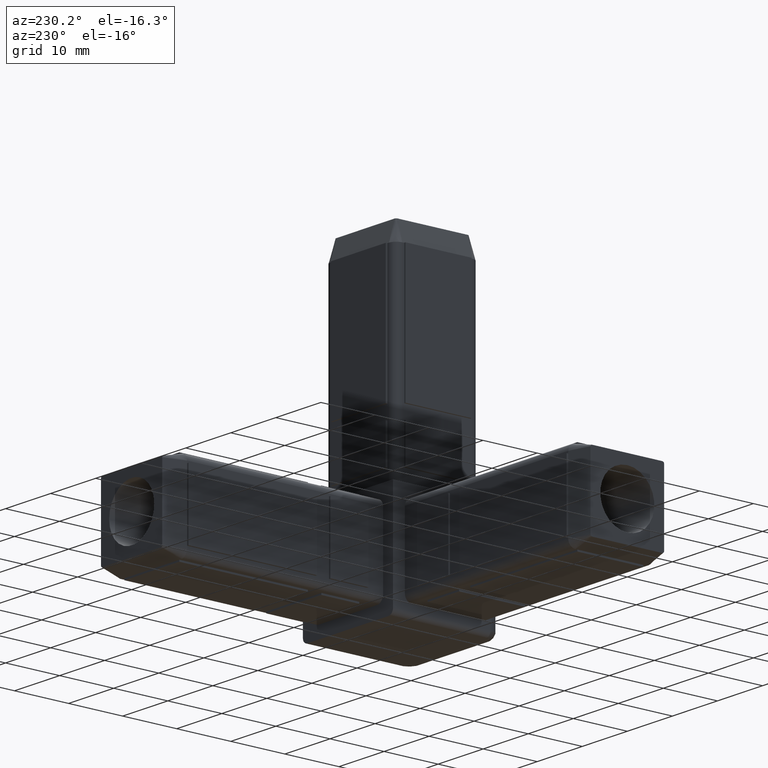
[diagram: clean part render]
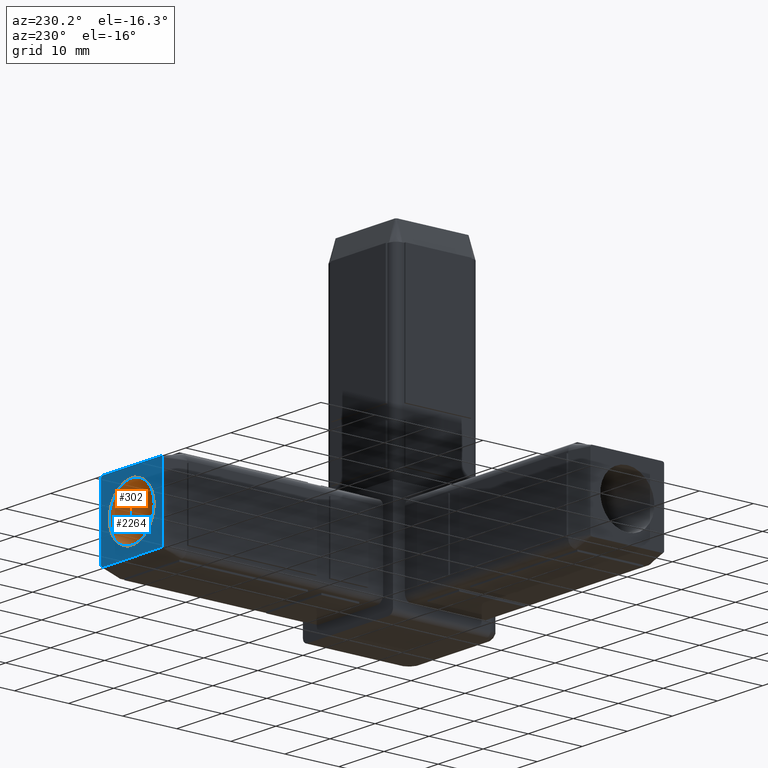
[diagram: same view with the hole feature highlighted: cylindrical wall and planar end face, labeled with their STEP entity ids]
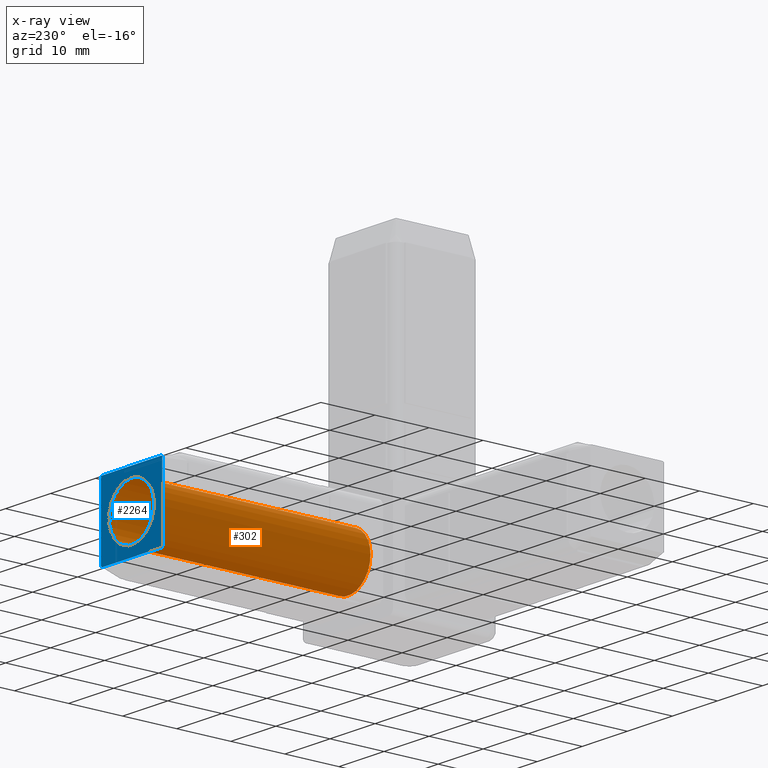
[diagram: x-ray of the same camera — body ghosted, the hole faces saturated]
A machine part, auxiliary view. The highlighted faces form one hole feature of diameter 10 mm: the cylindrical wall (entity #302, orange) and its adjacent planar end face (entity #2264, blue) — they share a circular edge in the B-rep.
The next image is the same camera in x-ray (body ghosted, the hole faces saturated) — the bore reads through the body.
Wall:
#252=CARTESIAN_POINT('',(10.0,40.000002152544255,4.618528E-014));
#253=DIRECTION('',(0.0,1.0,0.0));
#254=DIRECTION('',(-1.0,0.0,0.0));
#255=AXIS2_PLACEMENT_3D('',#252,#253,#254);
#256=CYLINDRICAL_SURFACE('',#255,5.0);
#257=CARTESIAN_POINT('',(15.0,-0.000017854767464,4.618528E-014));
#258=VERTEX_POINT('',#257);
#259=CARTESIAN_POINT('',(5.0,-0.000017854767464,4.618528E-014));
#260=VERTEX_POINT('',#259);
#261=CARTESIAN_POINT('',(10.0,-0.000017854767464,4.618528E-014));
#262=DIRECTION('',(0.0,1.0,0.0));
#263=DIRECTION('',(-1.0,0.0,0.0));
#264=AXIS2_PLACEMENT_3D('',#261,#262,#263);
#265=CIRCLE('',#264,5.0);
#266=EDGE_CURVE('',#258,#260,#265,.T.);
#267=ORIENTED_EDGE('',*,*,#266,.F.);
#268=CARTESIAN_POINT('',(10.0,-0.000017854767464,4.618528E-014));
#269=DIRECTION('',(0.0,1.0,0.0));
#270=DIRECTION('',(-1.0,0.0,0.0));
#271=AXIS2_PLACEMENT_3D('',#268,#269,#270);
#272=CIRCLE('',#271,5.0);
#273=EDGE_CURVE('',#260,#258,#272,.T.);
#274=ORIENTED_EDGE('',*,*,#273,.F.);
#275=CARTESIAN_POINT('',(5.0,40.000002152544255,4.618528E-014));
#276=VERTEX_POINT('',#275);
#277=CARTESIAN_POINT('',(5.0,40.000002152544255,4.618528E-014));
#278=DIRECTION('',(0.0,-1.0,0.0));
#279=VECTOR('',#278,40.000020007311718);
#280=LINE('',#277,#279);
#281=EDGE_CURVE('',#276,#260,#280,.T.);
#282=ORIENTED_EDGE('',*,*,#281,.F.);
#283=CARTESIAN_POINT('',(15.0,40.000002152544255,4.618528E-014));
#284=VERTEX_POINT('',#283);
#285=CARTESIAN_POINT('',(10.0,40.000002152544255,4.618528E-014));
#286=DIRECTION('',(0.0,1.0,0.0));
#287=DIRECTION('',(-1.0,0.0,0.0));
#288=AXIS2_PLACEMENT_3D('',#285,#286,#287);
#289=CIRCLE('',#288,5.0);
#290=EDGE_CURVE('',#276,#284,#289,.T.);
#291=ORIENTED_EDGE('',*,*,#290,.T.);
#292=CARTESIAN_POINT('',(10.0,40.000002152544255,4.618528E-014));
#293=DIRECTION('',(0.0,1.0,0.0));
#294=DIRECTION('',(-1.0,0.0,0.0));
#295=AXIS2_PLACEMENT_3D('',#292,#293,#294);
#296=CIRCLE('',#295,5.0);
#297=EDGE_CURVE('',#284,#276,#296,.T.);
#298=ORIENTED_EDGE('',*,*,#297,.T.);
#299=ORIENTED_EDGE('',*,*,#281,.T.);
#300=EDGE_LOOP('',(#267,#274,#282,#291,#298,#299));
#301=FACE_OUTER_BOUND('',#300,.T.);
#302=ADVANCED_FACE('',(#301),#256,.F.);
End face:
#275=CARTESIAN_POINT('',(5.0,40.000002152544255,4.618528E-014));
#276=VERTEX_POINT('',#275);
#283=CARTESIAN_POINT('',(15.0,40.000002152544255,4.618528E-014));
#284=VERTEX_POINT('',#283);
#285=CARTESIAN_POINT('',(10.0,40.000002152544255,4.618528E-014));
#286=DIRECTION('',(0.0,1.0,0.0));
#287=DIRECTION('',(-1.0,0.0,0.0));
#288=AXIS2_PLACEMENT_3D('',#285,#286,#287);
#289=CIRCLE('',#288,5.0);
#290=EDGE_CURVE('',#276,#284,#289,.T.);
#292=CARTESIAN_POINT('',(10.0,40.000002152544255,4.618528E-014));
#293=DIRECTION('',(0.0,1.0,0.0));
#294=DIRECTION('',(-1.0,0.0,0.0));
#295=AXIS2_PLACEMENT_3D('',#292,#293,#294);
#296=CIRCLE('',#295,5.0);
#297=EDGE_CURVE('',#284,#276,#296,.T.);
#2118=CARTESIAN_POINT('',(3.522919587539832,40.000002152544255,-6.800000000000071));
#2119=VERTEX_POINT('',#2118);
#2128=CARTESIAN_POINT('',(16.492702063166689,40.000002152544255,-6.800000000000074));
#2129=VERTEX_POINT('',#2128);
#2130=CARTESIAN_POINT('',(16.492702063166689,40.000002152544255,-6.800000000000074));
#2131=DIRECTION('',(-1.0,0.0,0.0));
#2132=VECTOR('',#2131,12.969782475626857);
#2133=LINE('',#2130,#2132);
#2134=EDGE_CURVE('',#2129,#2119,#2133,.T.);
#2183=CARTESIAN_POINT('',(3.200000000000046,40.000002152544255,-6.492702063333913));
#2184=VERTEX_POINT('',#2183);
#2191=CARTESIAN_POINT('',(3.507675795404794,40.000002152544255,-6.492702063333913));
#2192=DIRECTION('',(0.0,1.0,0.0));
#2193=DIRECTION('',(-1.0,0.0,0.0));
#2194=AXIS2_PLACEMENT_3D('',#2191,#2192,#2193);
#2195=CIRCLE('',#2194,0.307675795404732);
#2196=EDGE_CURVE('',#2119,#2184,#2195,.T.);
#2202=CARTESIAN_POINT('',(19.360012000023289,40.000002152544255,-9.360427644635646));
#2203=DIRECTION('',(0.0,1.0,0.0));
#2204=DIRECTION('',(-1.0,0.0,0.0));
#2205=AXIS2_PLACEMENT_3D('',#2202,#2203,#2204);
#2206=PLANE('',#2205);
#2207=CARTESIAN_POINT('',(3.200000000000046,40.000002152544255,6.492702063168241));
#2208=VERTEX_POINT('',#2207);
#2209=CARTESIAN_POINT('',(3.507297936831719,40.000002152544255,6.799999999999898));
#2210=VERTEX_POINT('',#2209);
#2211=CARTESIAN_POINT('',(3.507297936831719,40.000002152544255,6.492702063168242));
#2212=DIRECTION('',(0.0,1.0,0.0));
#2213=DIRECTION('',(-1.0,0.0,0.0));
#2214=AXIS2_PLACEMENT_3D('',#2211,#2212,#2213);
#2215=CIRCLE('',#2214,0.307297936831656);
#2216=EDGE_CURVE('',#2208,#2210,#2215,.T.);
#2217=ORIENTED_EDGE('',*,*,#2216,.T.);
#2218=CARTESIAN_POINT('',(16.492702063203296,40.000002152544255,6.799999999999898));
#2219=VERTEX_POINT('',#2218);
#2220=CARTESIAN_POINT('',(3.507297936831719,40.000002152544255,6.799999999999898));
#2221=DIRECTION('',(1.0,0.0,0.0));
#2222=VECTOR('',#2221,12.985404126371577);
#2223=LINE('',#2220,#2222);
#2224=EDGE_CURVE('',#2210,#2219,#2223,.T.);
#2225=ORIENTED_EDGE('',*,*,#2224,.T.);
#2226=CARTESIAN_POINT('',(16.800000000000182,40.000002152544255,6.492702063203047));
#2227=VERTEX_POINT('',#2226);
#2228=CARTESIAN_POINT('',(16.492702063203296,40.000002152544255,6.492702063203048));
#2229=DIRECTION('',(0.0,1.0,0.0));
#2230=DIRECTION('',(2.785541E-014,0.0,1.0));
#2231=AXIS2_PLACEMENT_3D('',#2228,#2229,#2230);
#2232=CIRCLE('',#2231,0.307297936796849);
#2233=EDGE_CURVE('',#2219,#2227,#2232,.T.);
#2234=ORIENTED_EDGE('',*,*,#2233,.T.);
#2235=CARTESIAN_POINT('',(16.800000000000182,40.000002152544255,-6.492702063166581));
#2236=VERTEX_POINT('',#2235);
#2237=CARTESIAN_POINT('',(16.800000000000182,40.000002152544255,6.492702063203083));
#2238=DIRECTION('',(0.0,0.0,-1.0));
#2239=VECTOR('',#2238,12.985404126369664);
#2240=LINE('',#2237,#2239);
#2241=EDGE_CURVE('',#2227,#2236,#2240,.T.);
#2242=ORIENTED_EDGE('',*,*,#2241,.T.);
#2243=CARTESIAN_POINT('',(16.492702063166689,40.000002152544255,-6.492702063166581));
#2244=DIRECTION('',(0.0,1.0,0.0));
#2245=DIRECTION('',(1.0,0.0,0.0));
#2246=AXIS2_PLACEMENT_3D('',#2243,#2244,#2245);
#2247=CIRCLE('',#2246,0.307297936833493);
#2248=EDGE_CURVE('',#2236,#2129,#2247,.T.);
#2249=ORIENTED_EDGE('',*,*,#2248,.T.);
#2250=ORIENTED_EDGE('',*,*,#2134,.T.);
#2251=ORIENTED_EDGE('',*,*,#2196,.T.);
#2252=CARTESIAN_POINT('',(3.200000000000046,40.000002152544255,-6.492702063333913));
#2253=DIRECTION('',(0.0,0.0,1.0));
#2254=VECTOR('',#2253,12.985404126502154);
#2255=LINE('',#2252,#2254);
#2256=EDGE_CURVE('',#2184,#2208,#2255,.T.);
#2257=ORIENTED_EDGE('',*,*,#2256,.T.);
#2258=EDGE_LOOP('',(#2217,#2225,#2234,#2242,#2249,#2250,#2251,#2257));
#2259=FACE_OUTER_BOUND('',#2258,.T.);
#2260=ORIENTED_EDGE('',*,*,#297,.F.);
#2261=ORIENTED_EDGE('',*,*,#290,.F.);
#2262=EDGE_LOOP('',(#2260,#2261));
#2263=FACE_BOUND('',#2262,.T.);
#2264=ADVANCED_FACE('',(#2259,#2263),#2206,.T.);